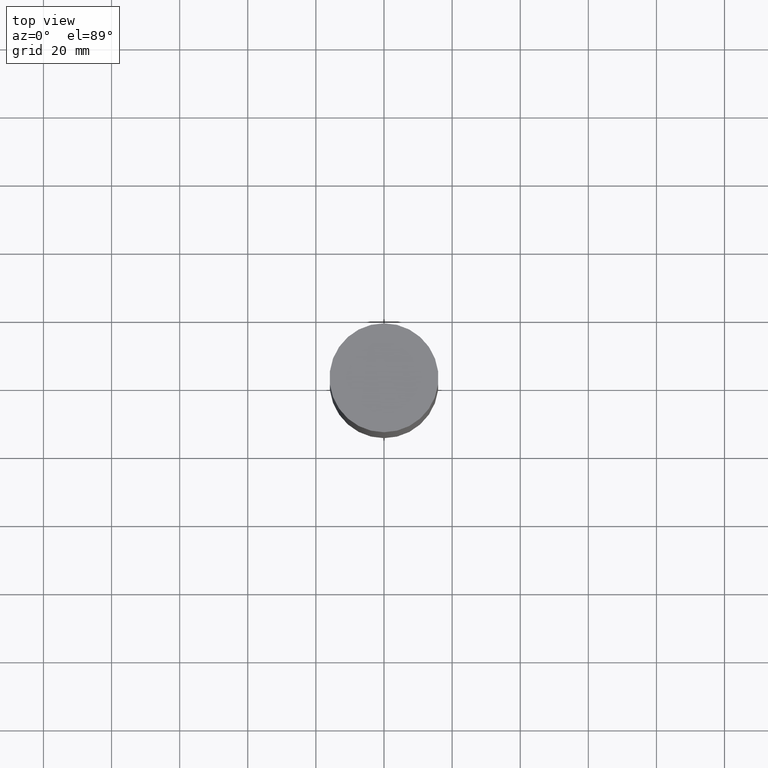
[diagram: clean part render]
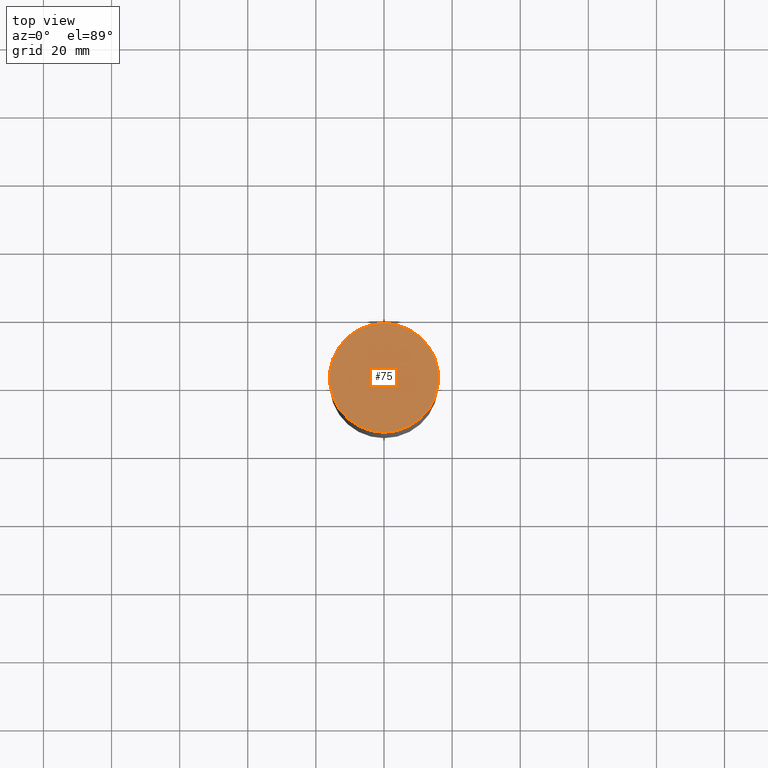
[diagram: same view with one face highlighted and labeled with its STEP entity id]
A machine part, top view. The second image highlights one B-rep face of the part: STEP entity #75.
In plain terms, the highlighted planar face has unit normal (-0, -0, 1).
Its self-contained STEP definition (entity closure, byte-faithful):
#75=ADVANCED_FACE('',(#83),#84,.T.);
#83=FACE_OUTER_BOUND('',#102,.T.);
#84=PLANE('',#103);
#102=EDGE_LOOP('',(#121));
#103=AXIS2_PLACEMENT_3D('',#122,#123,#124);
#121=ORIENTED_EDGE('',*,*,#154,.F.);
#122=CARTESIAN_POINT('',(-1.28587913910474E-014,8.00000000021494,210.000000000003));
#123=DIRECTION('',(-6.12323399573677E-017,-2.31697619765428E-014,1.0));
#124=DIRECTION('',(1.42356589480973E-030,-1.0,-2.31697619765428E-014));
#154=EDGE_CURVE('',#160,#160,#161,.T.);
#160=VERTEX_POINT('',#172);
#161=CIRCLE('',#173,16.0000000004298);
#172=CARTESIAN_POINT('',(-1.28587913910474E-014,16.0000000004299,210.000000000003));
#173=AXIS2_PLACEMENT_3D('',#184,#185,#186);
#184=CARTESIAN_POINT('',(-1.28587913910474E-014,3.06456247650764E-014,210.000000000003));
#185=DIRECTION('',(6.12323399573677E-017,-1.45931546500362E-016,-1.0));
#186=DIRECTION('',(4.10857733504554E-033,1.0,-1.45931546500362E-016));